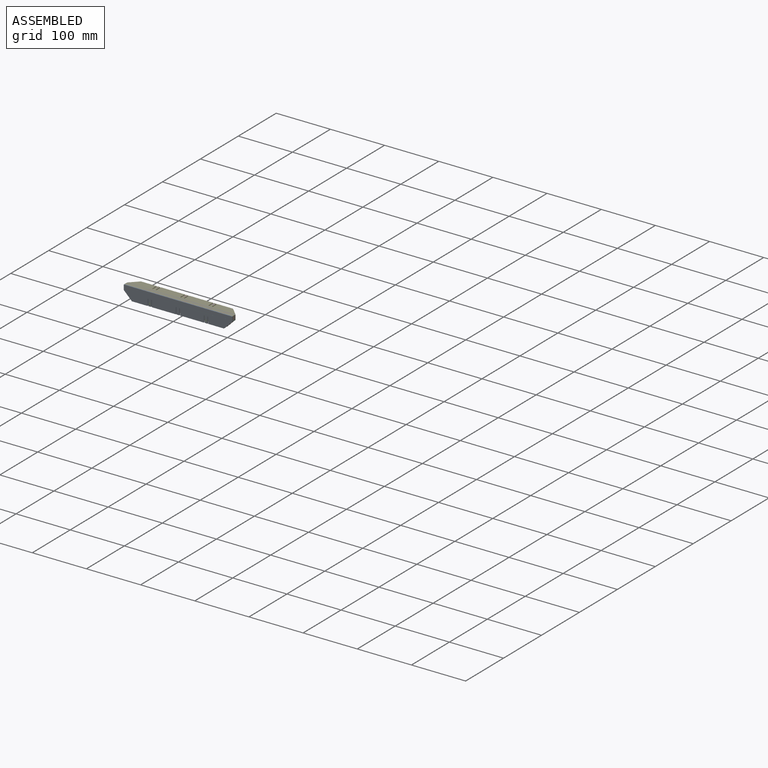
[diagram: assembled view]
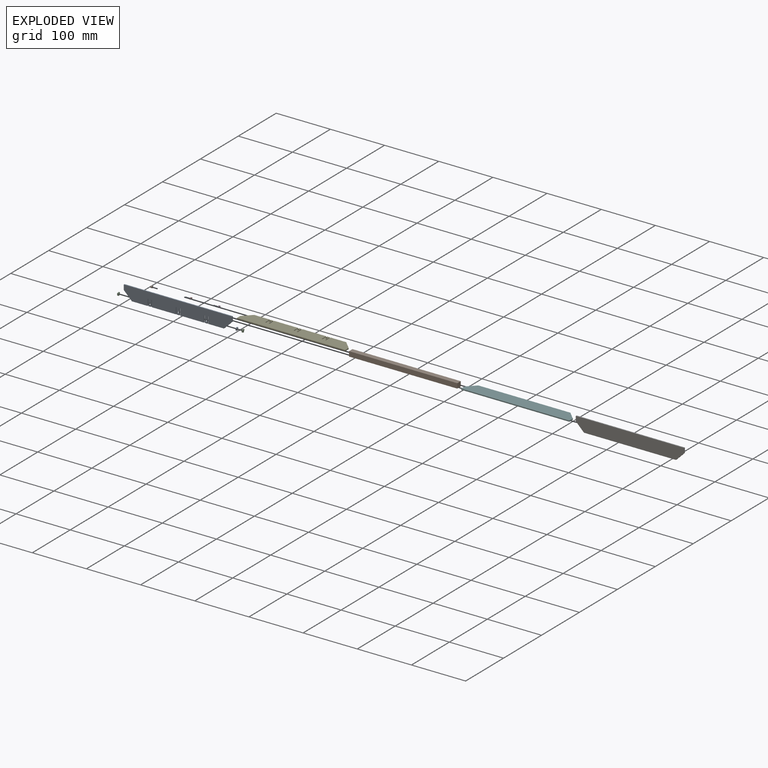
[diagram: exploded view]
GUIDED TOUR — MATED ASSEMBLY (Onshape document 86c91db47790280dee070196, AutoMate assembly 86c91db47790280dee070196_04dc0e2669c0e9b4a30aa99c_4aef8f6a618807159577870e_default)

This assembly has 11 components, labeled P0..P10 below (a component is one placed occurrence of a part; the same part can appear more than once), held together by 10 mates. A mate is a constraint between two components; its type names the relative motion it leaves free:
  FASTENED — locks the two components together rigidly (no relative motion).
Axis/direction vectors are unit vectors and 'through' points are millimeter coordinates, both in the assembly's world frame.

MATES
  1. FASTENED "Fastened 8": P3 <-> P4, direction (-1.000, 0.000, 0.000) through (48.04, 39.57, 34.28) mm
  2. FASTENED "Fastened 4": P4 <-> P8, direction (-1.000, 0.000, 0.000) through (-3.96, 18.07, 34.28) mm
  3. FASTENED "Fastened 6": P10 <-> P8, direction (-1.000, 0.000, 0.000) through (-55.96, 18.07, 16.78) mm
  4. FASTENED "Fastened 1": P8 <-> P9, direction (-1.000, 0.000, 0.000) through (-3.96, 18.07, 34.28) mm
  5. FASTENED "Fastened 5": P5 <-> P9, direction (-1.000, 0.000, 0.000) through (-3.96, 18.07, 25.28) mm
  6. FASTENED "Fastened 7": P0 <-> P8, direction (-1.000, 0.000, 0.000) through (-3.96, 18.07, 16.78) mm
  7. FASTENED "Fastened 9": P7 <-> P4, direction (-1.000, 0.000, 0.000) through (-3.96, 39.57, 34.28) mm
  8. FASTENED "Fastened 10": P1 <-> P4, direction (-1.000, 0.000, 0.000) through (-55.96, 39.57, 34.28) mm
  9. FASTENED "Fastened 3": P2 <-> P8, direction (-1.000, 0.000, 0.000) through (48.04, 18.07, 16.78) mm
  10. FASTENED "Fastened 2": P6 <-> P9, direction (-1.000, 0.000, 0.000) through (-3.96, 27.07, 34.28) mm

ASSEMBLY ORDER
  1. P7 — the base component [order verified]
  2. P3 [order verified]
  3. P1 [order verified]
  4. P9 [order verified]
  5. P4 [order verified]
  6. P10 [order verified]
  7. P0 [order verified]
  8. P2 [order verified]
  9. P8 [order verified]
  10. P6 [order verified]
  11. P5 [order verified]
(P4, P8 verified with a relaxed clearance tolerance: the source model stores slight part interference there.)
Order-tag legend:
  [order verified] — this step's position reverses a verified removal order: the component was checked to insert without passing through the ones already placed.

Of the 11 components, 11 carry the full construction recipe — the FeatureScript program that regenerates the part's solid from scratch; the rest are supplied as boundary geometry only.
Each toured component is shown spotlighted twice — in the assembled view, then in the exploded view, where a leader line traces a displaced component back to its assembled socket (saturated green if recipe-attached, orange if geometry-only; every other component desaturated gray) — followed by its recipe or geometry summary and the mates that hold it.
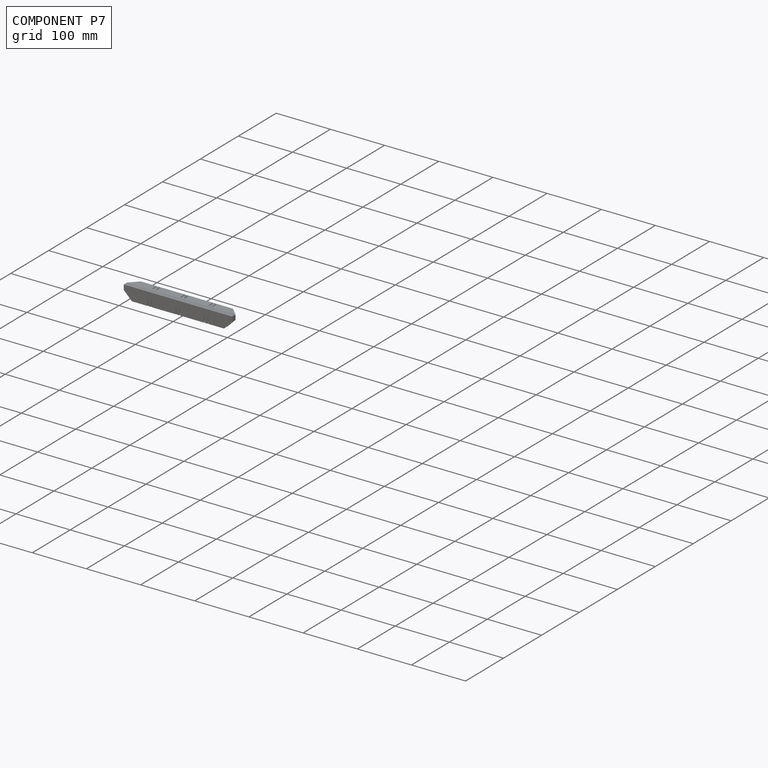
[diagram: component P7 — assembled]
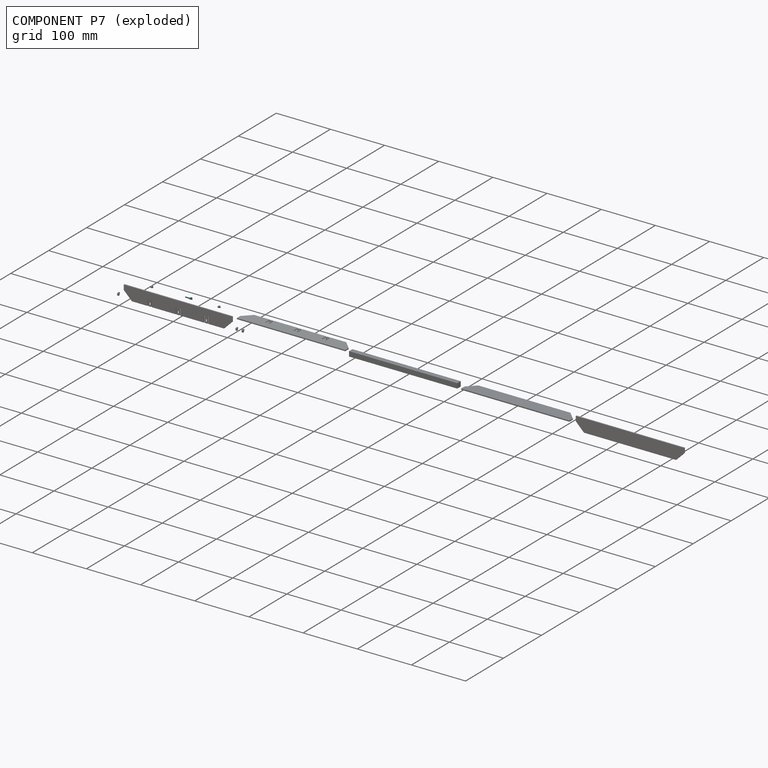
[diagram: component P7 — exploded]
COMPONENT P7 — same part as P0 (CADFS 00608664); its construction recipe is shown at P0.
Held by: FASTENED mate "Fastened 9" to P4.
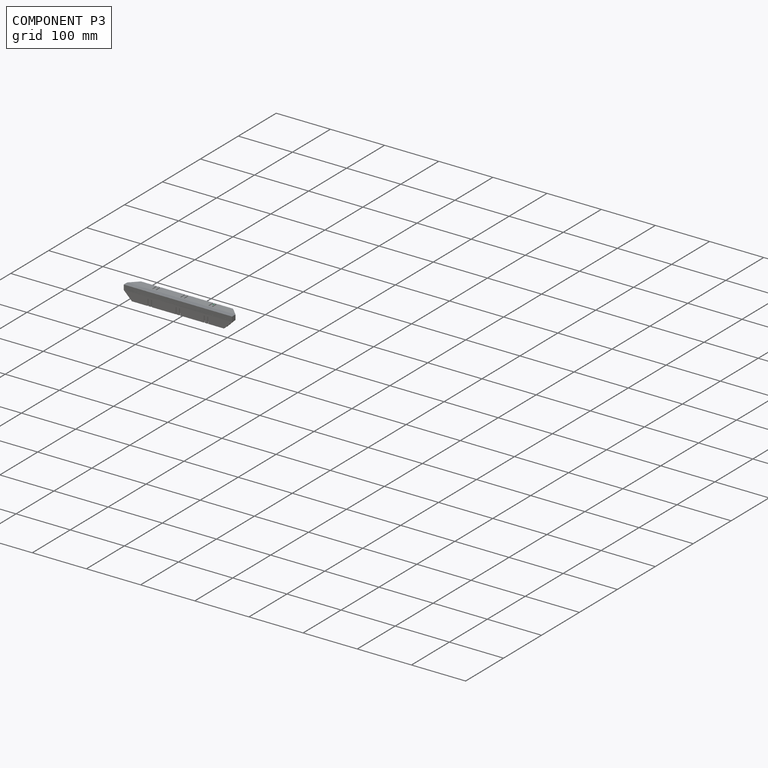
[diagram: component P3 — assembled]
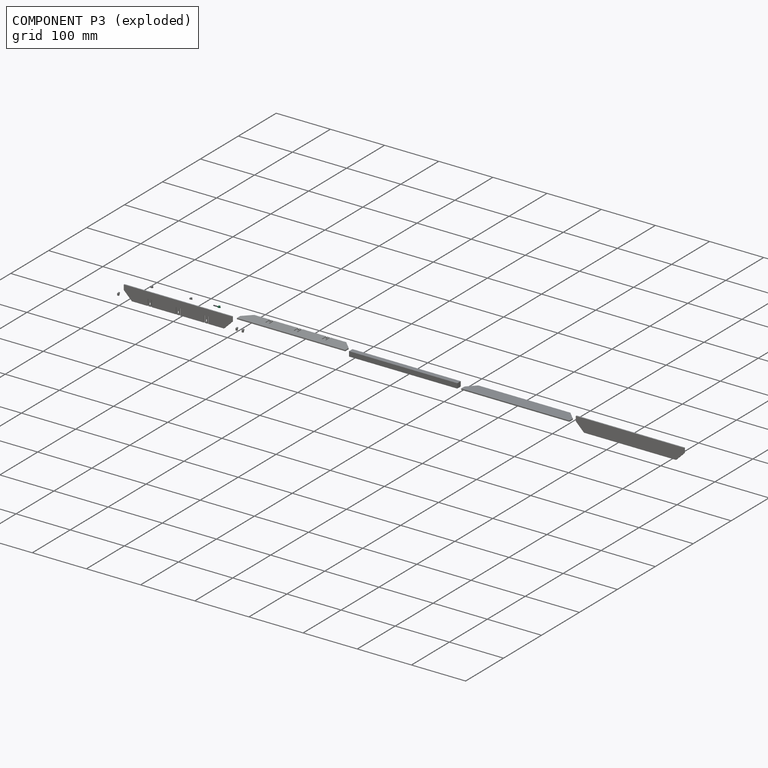
[diagram: component P3 — exploded]
COMPONENT P3 — same part as P0 (CADFS 00608664); its construction recipe is shown at P0.
Held by: FASTENED mate "Fastened 8" to P4.
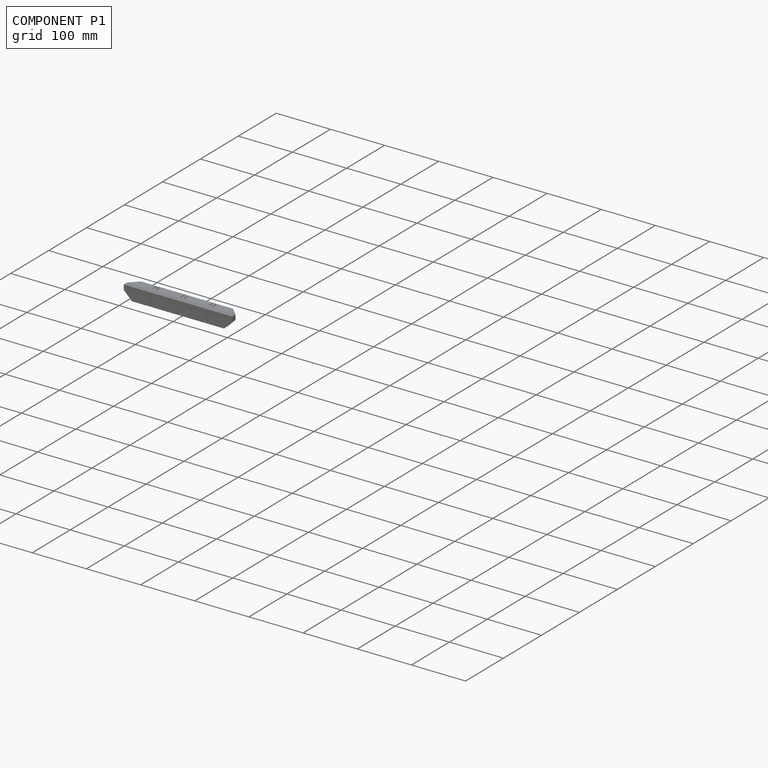
[diagram: component P1 — assembled]
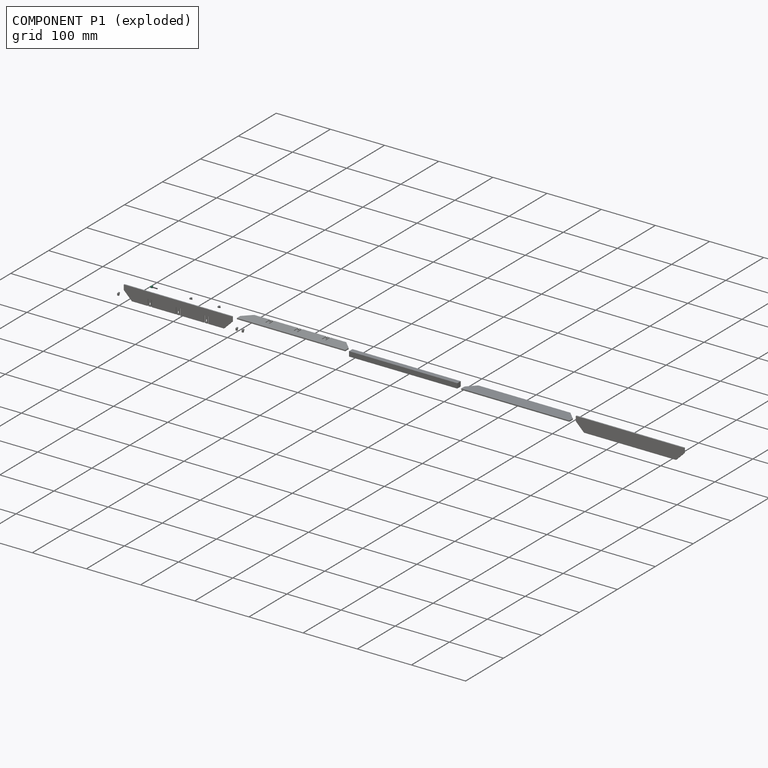
[diagram: component P1 — exploded]
COMPONENT P1 — same part as P0 (CADFS 00608664); its construction recipe is shown at P0.
Held by: FASTENED mate "Fastened 10" to P4.
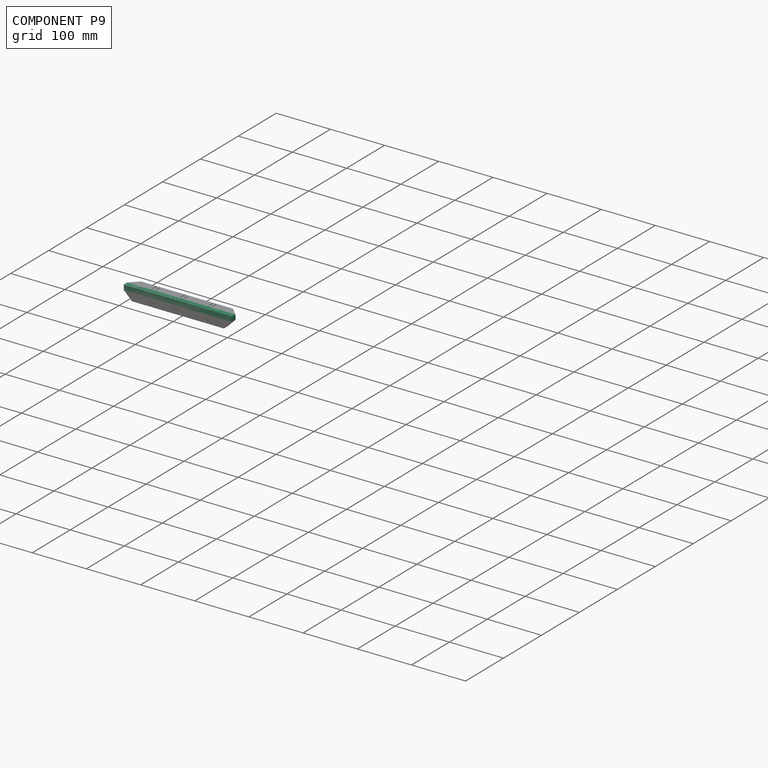
[diagram: component P9 — assembled]
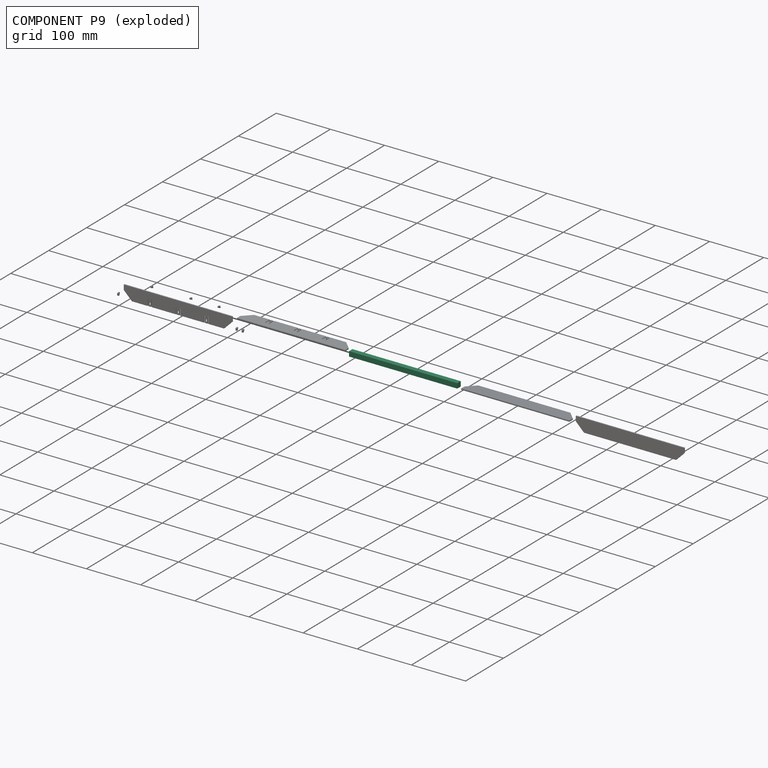
[diagram: component P9 — exploded]
COMPONENT P9 — recipe-attached (CADFS 00608663, mesh-verified: the recipe's output STEP matches this component's geometry to below the mesh-comparison resolution (tessellation chordal tolerance ~0.301 mm)).
Held by: FASTENED mate "Fastened 1" to P8; FASTENED mate "Fastened 5" to P5; FASTENED mate "Fastened 2" to P6.
Construction recipe (FeatureScript — the CAD program that rebuilds this solid; sketch coordinates are in the units given by the * unit suffixes, e.g. mm):

FeatureScript 1511;
import(path : "onshape/std/geometry.fs", version : "1511.0");
import(path : "onshape/std/common.fs", version : "1511.0");
const mm = millimeter;
const VERTEX = EntityType.VERTEX;
const EDGE = EntityType.EDGE;
const FACE = EntityType.FACE;
const BODY = EntityType.BODY;
function v(x, y){return vector(x, y);}
function OD(order){return orderDisambiguation(order);}
function OSD(set){return originalSetDisambiguation(set);}
function TD(topology){return topologyDisambiguation(topology);}
function TDD(query){return trueDependencyDisambiguation(query);}
function sQuery(a, b, c) {return sketchEntityQuery(a, b, c);}

annotation { "Feature Type Name" : "Feature", "Feature Type Description" : "" }
export const myFeature = defineFeature(function(context is Context, id is Id, definition is map)
    precondition{}
    {
        {
            var Q0;
            Q0=qCreatedBy(makeId("Front.planeOp"),FACE);
            var sketch = newSketch(context, id + "F0", { "sketchPlane" : qUnion([Q0])});
            skLineSegment(sketch, "E0.bottom", {"start": v(100, -4.5) * mm, "end": v(-100, -4.5) * mm});
            skLineSegment(sketch, "E0.top", {"start": v(100, 4.5) * mm, "end": v(-100, 4.5) * mm});
            skLineSegment(sketch, "E0.left", {"start": v(100, -4.5) * mm, "end": v(100, 4.5) * mm});
            skLineSegment(sketch, "E0.right", {"start": v(-100, -4.5) * mm, "end": v(-100, 4.5) * mm});
            skPoint(sketch, "E0.middle", {"position": v(0, 0) * mm});
            skSolve(sketch);
        }
        {
            var Q0;
            Q0=makeQuery(id+"F0.imprint","IMPRINT",FACE,{"disambiguationData":[TD([[makeQuery(id+"F0.imprint","IMPRINT",EDGE,{"derivedFrom":sQuery(id+"F0.wireOp",EDGE,"E0.bottom")}),-1.0]])]});
            extrude(context, id + "F1", {"entities" : qUnion([Q0]), "depth" : 9 * mm, "offsetDistance" : 25 * mm});
        }
    });
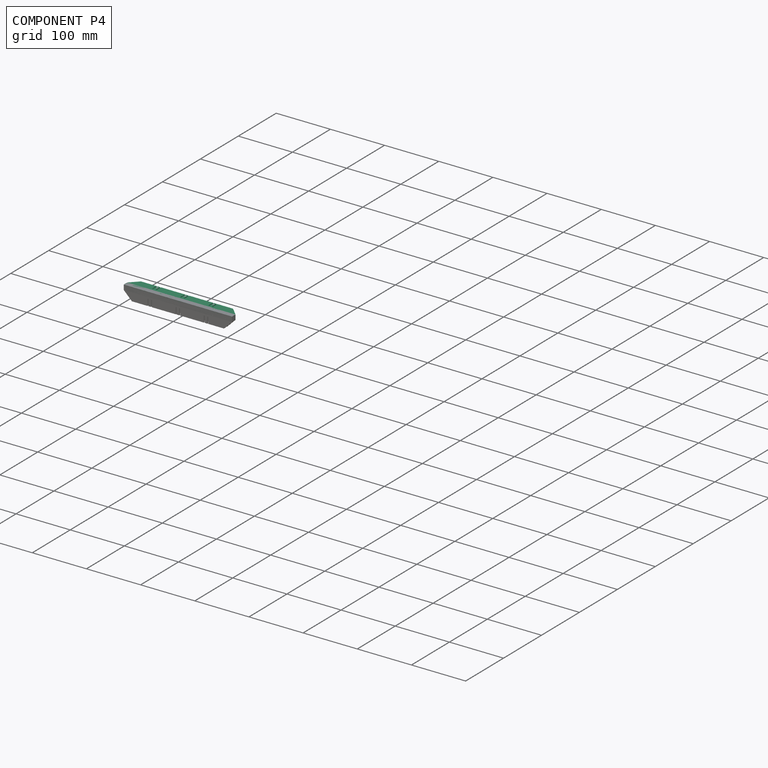
[diagram: component P4 — assembled]
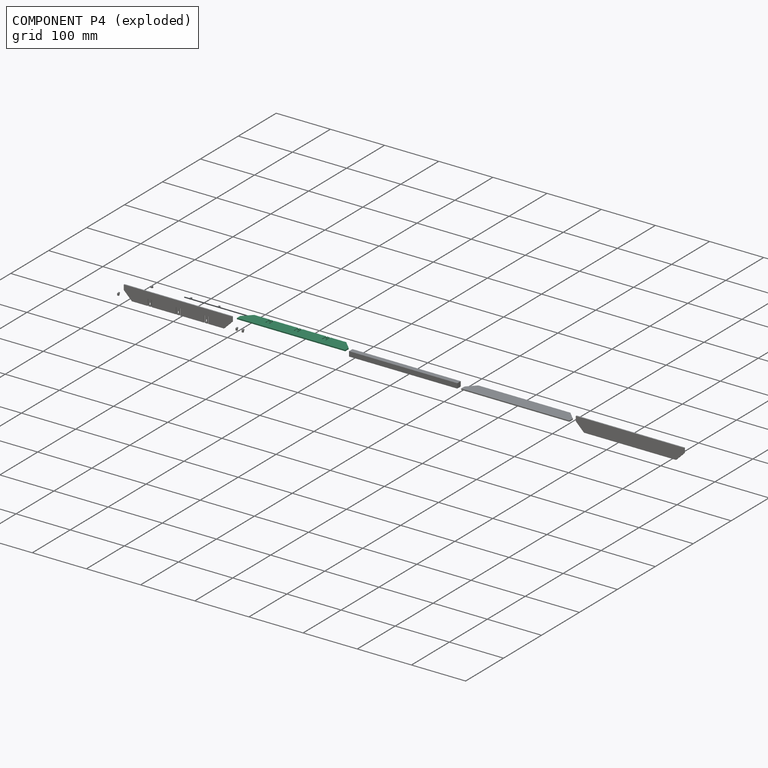
[diagram: component P4 — exploded]
COMPONENT P4 — recipe-attached (CADFS 00608661, mesh-verified: the recipe's output STEP matches this component's geometry to below the mesh-comparison resolution (tessellation chordal tolerance ~0.302 mm)).
Held by: FASTENED mate "Fastened 8" to P3; FASTENED mate "Fastened 4" to P8; FASTENED mate "Fastened 9" to P7; FASTENED mate "Fastened 10" to P1.
Construction recipe (FeatureScript — the CAD program that rebuilds this solid; sketch coordinates are in the units given by the * unit suffixes, e.g. mm):

FeatureScript 1511;
import(path : "onshape/std/geometry.fs", version : "1511.0");
import(path : "onshape/std/common.fs", version : "1511.0");
const mm = millimeter;
const VERTEX = EntityType.VERTEX;
const EDGE = EntityType.EDGE;
const FACE = EntityType.FACE;
const BODY = EntityType.BODY;
function v(x, y){return vector(x, y);}
function OD(order){return orderDisambiguation(order);}
function OSD(set){return originalSetDisambiguation(set);}
function TD(topology){return topologyDisambiguation(topology);}
function TDD(query){return trueDependencyDisambiguation(query);}
function sQuery(a, b, c) {return sketchEntityQuery(a, b, c);}

annotation { "Feature Type Name" : "Feature", "Feature Type Description" : "" }
export const myFeature = defineFeature(function(context is Context, id is Id, definition is map)
    precondition{}
    {
        {
            var Q0;
            Q0=qCreatedBy(makeId("Front.planeOp"),FACE);
            var sketch = newSketch(context, id + "F0", { "sketchPlane" : qUnion([Q0])});
            skLineSegment(sketch, "E0.bottom", {"start": v(85, -7.5) * mm, "end": v(-85, -7.5) * mm});
            skLineSegment(sketch, "E0.top", {"start": v(85, 7.5) * mm, "end": v(-85, 7.5) * mm});
            skLineSegment(sketch, "E0.left", {"start": v(85, -7.5) * mm, "end": v(85, 7.5) * mm});
            skLineSegment(sketch, "E0.right", {"start": v(-85, -7.5) * mm, "end": v(-85, 7.5) * mm});
            skPoint(sketch, "E0.middle", {"position": v(0, 0) * mm});
            skLineSegment(sketch, "E1.bottom", {"start": v(-85, -7.5) * mm, "end": v(-100, -7.5) * mm});
            skLineSegment(sketch, "E1.top", {"start": v(-85, 7.5) * mm, "end": v(-100, 7.5) * mm});
            skLineSegment(sketch, "E1.right", {"start": v(-100, -7.5) * mm, "end": v(-100, 7.5) * mm});
            skPoint(sketch, "E1.middle", {"position": v(-92.5, 0) * mm});
            skLineSegment(sketch, "E2", {"start": v(-100, 7.5) * mm, "end": v(-85, -7.5) * mm});
            skLineSegment(sketch, "E3.bottom", {"start": v(100, -7.5) * mm, "end": v(85, -7.5) * mm});
            skLineSegment(sketch, "E3.top", {"start": v(100, 7.5) * mm, "end": v(85, 7.5) * mm});
            skLineSegment(sketch, "E3.left", {"start": v(100, -7.5) * mm, "end": v(100, 7.5) * mm});
            skPoint(sketch, "E3.middle", {"position": v(92.5, 0) * mm});
            skLineSegment(sketch, "E4", {"start": v(85, -7.5) * mm, "end": v(100, 7.5) * mm});
            skLineSegment(sketch, "E5.bottom", {"start": v(-54.5, -7.5) * mm, "end": v(-56, -7.5) * mm});
            skLineSegment(sketch, "E5.top", {"start": v(-54.5, 4.5) * mm, "end": v(-56, 4.5) * mm});
            skLineSegment(sketch, "E5.left", {"start": v(-54.5, -7.5) * mm, "end": v(-54.5, 4.5) * mm});
            skLineSegment(sketch, "E5.right", {"start": v(-56, -7.5) * mm, "end": v(-56, 4.5) * mm});
            skPoint(sketch, "E5.middle", {"position": v(-55.25, -1.5) * mm});
            skLineSegment(sketch, "E6.bottom", {"start": v(-48, -7.5) * mm, "end": v(-49.5, -7.5) * mm});
            skLineSegment(sketch, "E6.top", {"start": v(-48, 4.5) * mm, "end": v(-49.5, 4.5) * mm});
            skLineSegment(sketch, "E6.left", {"start": v(-48, -7.5) * mm, "end": v(-48, 4.5) * mm});
            skLineSegment(sketch, "E6.right", {"start": v(-49.5, -7.5) * mm, "end": v(-49.5, 4.5) * mm});
            skPoint(sketch, "E6.middle", {"position": v(-48.75, -1.5) * mm});
            skLineSegment(sketch, "E7.bottom", {"start": v(-2.5, -7.5) * mm, "end": v(-4, -7.5) * mm});
            skLineSegment(sketch, "E7.top", {"start": v(-2.5, 4.5) * mm, "end": v(-4, 4.5) * mm});
            skLineSegment(sketch, "E7.left", {"start": v(-2.5, -7.5) * mm, "end": v(-2.5, 4.5) * mm});
            skLineSegment(sketch, "E7.right", {"start": v(-4, -7.5) * mm, "end": v(-4, 4.5) * mm});
            skPoint(sketch, "E7.middle", {"position": v(-3.25, -1.5) * mm});
            skLineSegment(sketch, "E8.bottom", {"start": v(4, -7.5) * mm, "end": v(2.5, -7.5) * mm});
            skLineSegment(sketch, "E8.top", {"start": v(4, 4.5) * mm, "end": v(2.5, 4.5) * mm});
            skLineSegment(sketch, "E8.left", {"start": v(4, -7.5) * mm, "end": v(4, 4.5) * mm});
            skLineSegment(sketch, "E8.right", {"start": v(2.5, -7.5) * mm, "end": v(2.5, 4.5) * mm});
            skPoint(sketch, "E8.middle", {"position": v(3.25, -1.5) * mm});
            skLineSegment(sketch, "E9.bottom", {"start": v(49.5, -7.5) * mm, "end": v(48, -7.5) * mm});
            skLineSegment(sketch, "E9.top", {"start": v(49.5, 4.5) * mm, "end": v(48, 4.5) * mm});
            skLineSegment(sketch, "E9.left", {"start": v(49.5, -7.5) * mm, "end": v(49.5, 4.5) * mm});
            skLineSegment(sketch, "E9.right", {"start": v(48, -7.5) * mm, "end": v(48, 4.5) * mm});
            skPoint(sketch, "E9.middle", {"position": v(48.75, -1.5) * mm});
            skLineSegment(sketch, "E10.bottom", {"start": v(56, -7.5) * mm, "end": v(54.5, -7.5) * mm});
            skLineSegment(sketch, "E10.top", {"start": v(56, 4.5) * mm, "end": v(54.5, 4.5) * mm});
            skLineSegment(sketch, "E10.left", {"start": v(56, -7.5) * mm, "end": v(56, 4.5) * mm});
            skLineSegment(sketch, "E10.right", {"start": v(54.5, -7.5) * mm, "end": v(54.5, 4.5) * mm});
            skPoint(sketch, "E10.middle", {"position": v(55.25, -1.5) * mm});
            skLineSegment(sketch, "E11.bottom", {"start": v(-50.75, -5) * mm, "end": v(-53.25, -5) * mm});
            skLineSegment(sketch, "E11.top", {"start": v(-50.75, -1) * mm, "end": v(-53.25, -1) * mm});
            skLineSegment(sketch, "E11.left", {"start": v(-50.75, -5) * mm, "end": v(-50.75, -1) * mm});
            skLineSegment(sketch, "E11.right", {"start": v(-53.25, -5) * mm, "end": v(-53.25, -1) * mm});
            skPoint(sketch, "E11.middle", {"position": v(-52, -3) * mm});
            skLineSegment(sketch, "E12.bottom", {"start": v(53.25, -5) * mm, "end": v(50.75, -5) * mm});
            skLineSegment(sketch, "E12.top", {"start": v(53.25, -1) * mm, "end": v(50.75, -1) * mm});
            skLineSegment(sketch, "E12.left", {"start": v(53.25, -5) * mm, "end": v(53.25, -1) * mm});
            skLineSegment(sketch, "E12.right", {"start": v(50.75, -5) * mm, "end": v(50.75, -1) * mm});
            skPoint(sketch, "E12.middle", {"position": v(52, -3) * mm});
            skLineSegment(sketch, "E13.bottom", {"start": v(1.25, -5) * mm, "end": v(-1.25, -5) * mm});
            skLineSegment(sketch, "E13.top", {"start": v(1.25, -1) * mm, "end": v(-1.25, -1) * mm});
            skLineSegment(sketch, "E13.left", {"start": v(1.25, -5) * mm, "end": v(1.25, -1) * mm});
            skLineSegment(sketch, "E13.right", {"start": v(-1.25, -5) * mm, "end": v(-1.25, -1) * mm});
            skPoint(sketch, "E13.middle", {"position": v(0, -3) * mm});
            skLineSegment(sketch, "E14.bottom", {"start": v(100, 7.5) * mm, "end": v(-100, 7.5) * mm});
            skLineSegment(sketch, "E14.top", {"start": v(100, 16.5) * mm, "end": v(-100, 16.5) * mm});
            skLineSegment(sketch, "E14.left", {"start": v(100, 7.5) * mm, "end": v(100, 16.5) * mm});
            skLineSegment(sketch, "E14.right", {"start": v(-100, 7.5) * mm, "end": v(-100, 16.5) * mm});
            skPoint(sketch, "E14.middle", {"position": v(0, 12) * mm});
            skSolve(sketch);
        }
        {
            var Q0;
            Q0=makeQuery(id+"F0.imprint","IMPRINT",FACE,{"disambiguationData":[TD([[makeQuery(id+"F0.imprint","IMPRINT",EDGE,{"derivedFrom":sQuery(id+"F0.wireOp",EDGE,"E0.bottom")}),-1.0]])]});
            var Q1;
            Q1=makeQuery(id+"F0.imprint","IMPRINT",FACE,{"disambiguationData":[TD([[makeQuery(id+"F0.imprint","IMPRINT",EDGE,{"derivedFrom":sQuery(id+"F0.wireOp",EDGE,"E1.top")}),1.0]])]});
            var Q2;
            Q2=makeQuery(id+"F0.imprint","IMPRINT",FACE,{"disambiguationData":[TD([[makeQuery(id+"F0.imprint","IMPRINT",EDGE,{"derivedFrom":sQuery(id+"F0.wireOp",EDGE,"E3.top")}),1.0]])]});
            var Q3;
            Q3=makeQuery(id+"F0.imprint","IMPRINT",FACE,{"disambiguationData":[TD([[makeQuery(id+"F0.imprint","IMPRINT",EDGE,{"derivedFrom":sQuery(id+"F0.wireOp",EDGE,"OD9o5IjV-5K3p-bvsU-E8e2-8qKfq0g9wVGw.bottom")}),-1.0]])]});
            var Q4;
            {var subQ0=sQuery(id+"F0.wireOp",EDGE,"E0.right");Q4=makeQuery(id+"F0.imprint","IMPRINT",FACE,{"disambiguationData":[TD([[makeQuery(id+"F0.imprint","IMPRINT",EDGE,{"derivedFrom":subQ0}),1.0]])]});}
            var Q5;
            Q5=makeQuery(id+"F0.imprint","IMPRINT",FACE,{"disambiguationData":[TD([[makeQuery(id+"F0.imprint","IMPRINT",EDGE,{"derivedFrom":sQuery(id+"F0.wireOp",EDGE,"E14.top")}),1.0]])]});
            var Q6;
            {var subQ0=sQuery(id+"F0.wireOp",EDGE,"E0.left");Q6=makeQuery(id+"F0.imprint","IMPRINT",FACE,{"disambiguationData":[TD([[makeQuery(id+"F0.imprint","IMPRINT",EDGE,{"derivedFrom":subQ0}),-1.0]])]});}
            extrude(context, id + "F1", {"entities" : qUnion([Q0, Q1, Q2, Q3, Q4, Q5, Q6]), "depth" : 2 * mm, "offsetDistance" : 25 * mm});
        }
    });
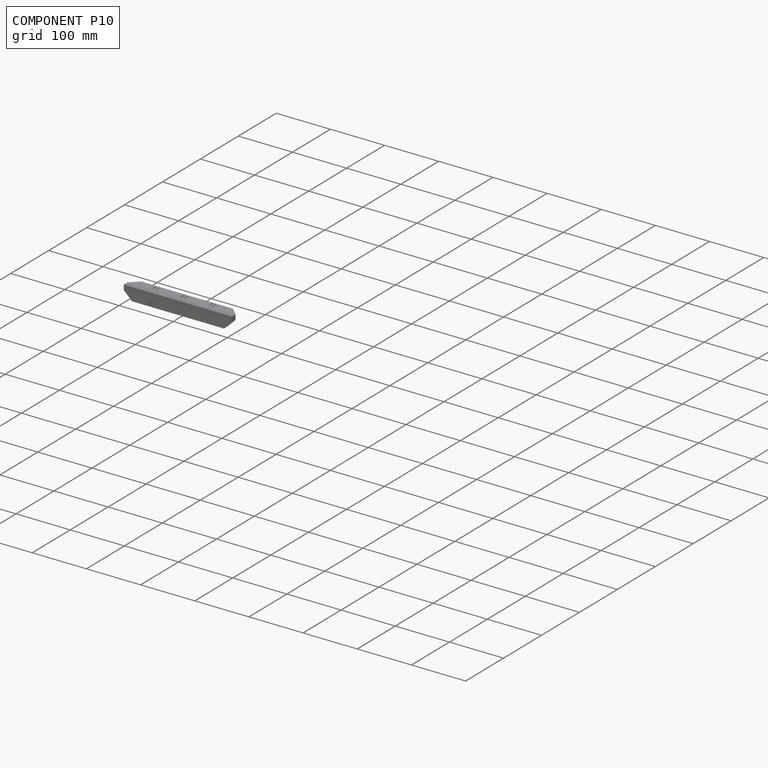
[diagram: component P10 — assembled]
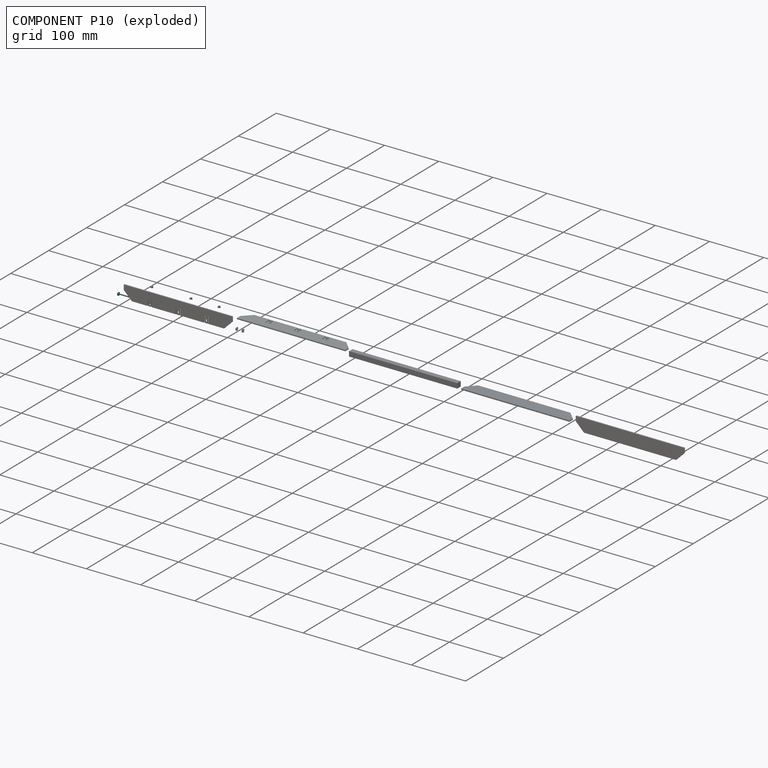
[diagram: component P10 — exploded]
COMPONENT P10 — same part as P0 (CADFS 00608664); its construction recipe is shown at P0.
Held by: FASTENED mate "Fastened 6" to P8.
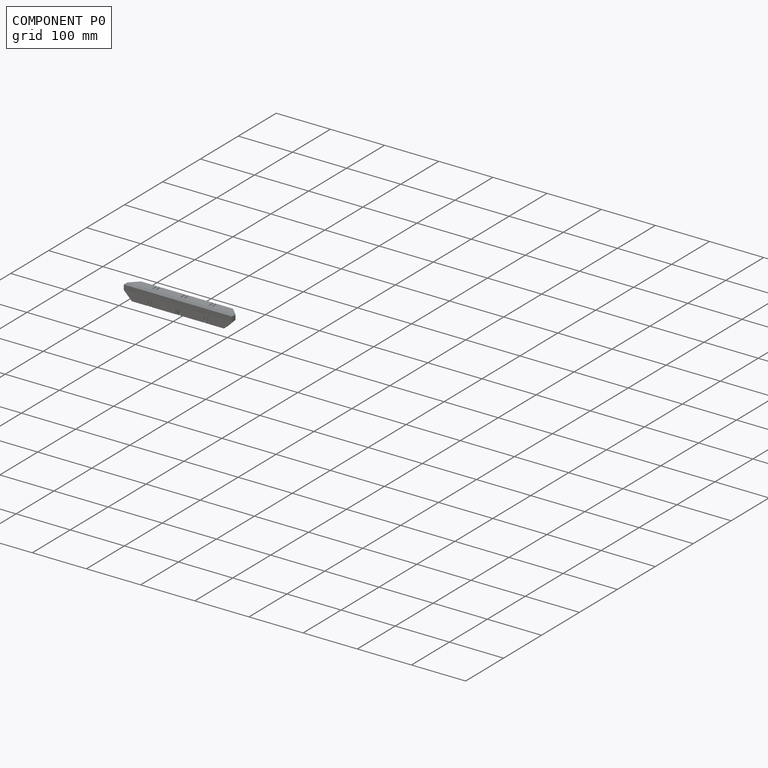
[diagram: component P0 — assembled]
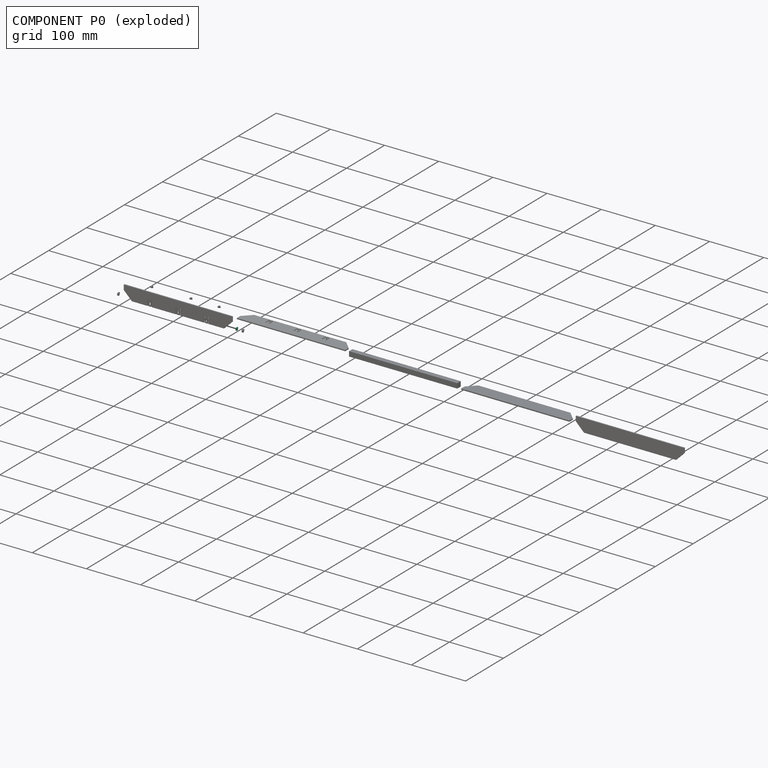
[diagram: component P0 — exploded]
COMPONENT P0 — recipe-attached (CADFS 00608664, mesh-verified: the recipe's output STEP matches this component's geometry to below the mesh-comparison resolution (tessellation chordal tolerance ~0.0103 mm)).
Held by: FASTENED mate "Fastened 7" to P8.
Construction recipe (FeatureScript — the CAD program that rebuilds this solid; sketch coordinates are in the units given by the * unit suffixes, e.g. mm):

FeatureScript 1511;
import(path : "onshape/std/geometry.fs", version : "1511.0");
import(path : "onshape/std/common.fs", version : "1511.0");
const mm = millimeter;
const VERTEX = EntityType.VERTEX;
const EDGE = EntityType.EDGE;
const FACE = EntityType.FACE;
const BODY = EntityType.BODY;
function v(x, y){return vector(x, y);}
function OD(order){return orderDisambiguation(order);}
function OSD(set){return originalSetDisambiguation(set);}
function TD(topology){return topologyDisambiguation(topology);}
function TDD(query){return trueDependencyDisambiguation(query);}
function sQuery(a, b, c) {return sketchEntityQuery(a, b, c);}

annotation { "Feature Type Name" : "Feature", "Feature Type Description" : "" }
export const myFeature = defineFeature(function(context is Context, id is Id, definition is map)
    precondition{}
    {
        {
            var Q0;
            Q0=qCreatedBy(makeId("Right.planeOp"),FACE);
            var sketch = newSketch(context, id + "F0", { "sketchPlane" : qUnion([Q0])});
            skLineSegment(sketch, "E0.bottom", {"start": v(1, -2) * mm, "end": v(-1, -2) * mm});
            skLineSegment(sketch, "E0.top", {"start": v(1, 2) * mm, "end": v(-1, 2) * mm});
            skLineSegment(sketch, "E0.left", {"start": v(1, -2) * mm, "end": v(1, 2) * mm});
            skLineSegment(sketch, "E0.right", {"start": v(-1, -2) * mm, "end": v(-1, 2) * mm});
            skPoint(sketch, "E0.middle", {"position": v(0, 0) * mm});
            skLineSegment(sketch, "E1.bottom", {"start": v(3, -2.5) * mm, "end": v(1, -2.5) * mm});
            skLineSegment(sketch, "E1.top", {"start": v(3, 2.5) * mm, "end": v(1, 2.5) * mm});
            skLineSegment(sketch, "E1.left", {"start": v(3, -2.5) * mm, "end": v(3, 2.5) * mm});
            skLineSegment(sketch, "E1.right", {"start": v(1, -2.5) * mm, "end": v(1, 2.5) * mm});
            skPoint(sketch, "E1.middle", {"position": v(2, 0) * mm});
            skLineSegment(sketch, "E2", {"start": v(1, -2.5) * mm, "end": v(3, 2.5) * mm});
            skSolve(sketch);
        }
        {
            var Q0;
            {var subQ0=sQuery(id+"F0.wireOp",EDGE,"E0.bottom");Q0=makeQuery(id+"F0.imprint","IMPRINT",FACE,{"disambiguationData":[TD([[makeQuery(id+"F0.imprint","IMPRINT",EDGE,{"derivedFrom":subQ0}),-1.0]])]});}
            var Q1;
            {var subQ2=sQuery(id+"F0.wireOp",EDGE,"E1.top");Q1=makeQuery(id+"F0.imprint","IMPRINT",FACE,{"disambiguationData":[TD([[makeQuery(id+"F0.imprint","IMPRINT",EDGE,{"derivedFrom":subQ2}),1.0]])]});}
            extrude(context, id + "F1", {"entities" : qUnion([Q0, Q1]), "depth" : 2.5 * mm, "offsetDistance" : 25 * mm});
        }
    });
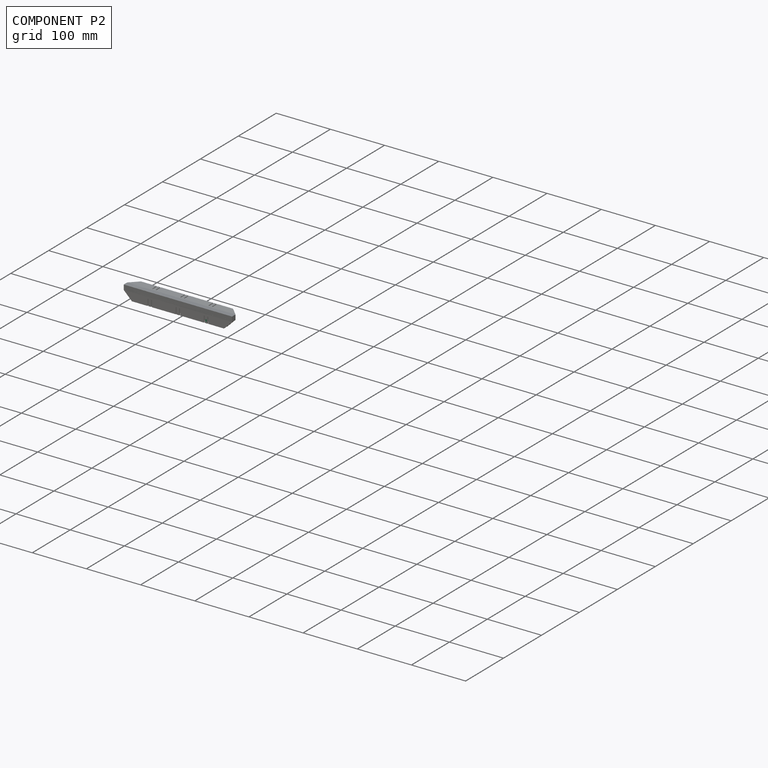
[diagram: component P2 — assembled]
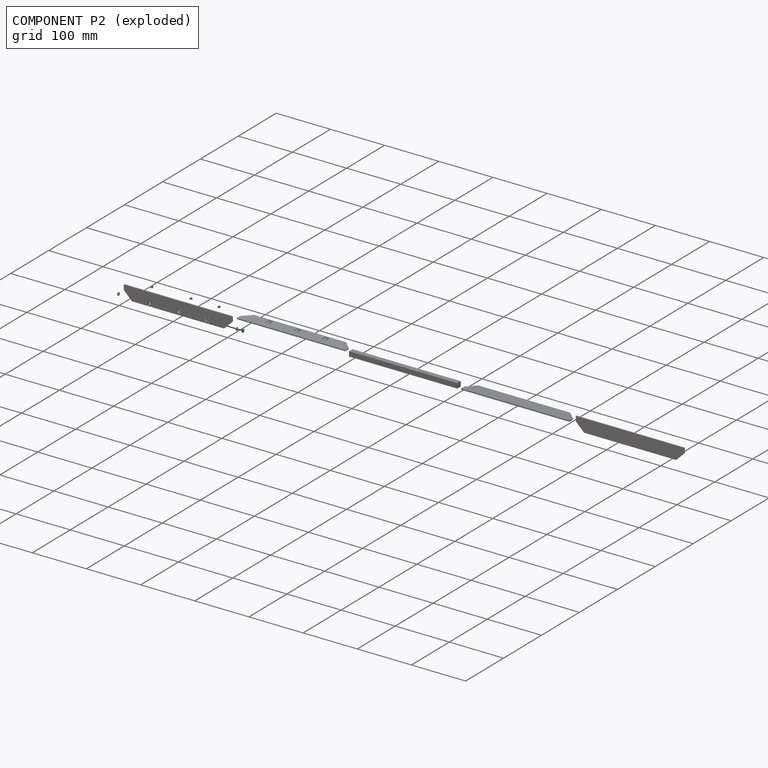
[diagram: component P2 — exploded]
COMPONENT P2 — same part as P0 (CADFS 00608664); its construction recipe is shown at P0.
Held by: FASTENED mate "Fastened 3" to P8.
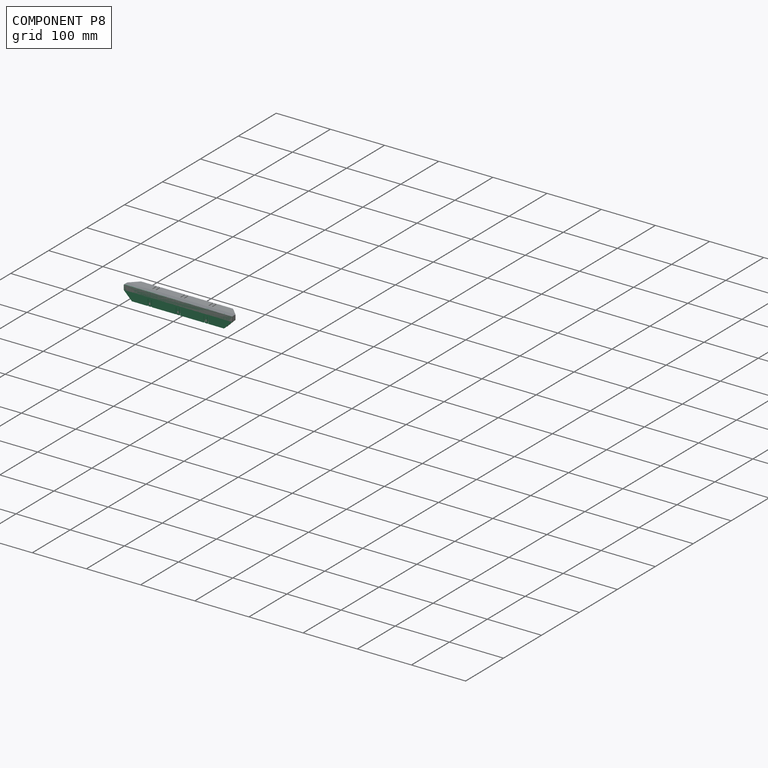
[diagram: component P8 — assembled]
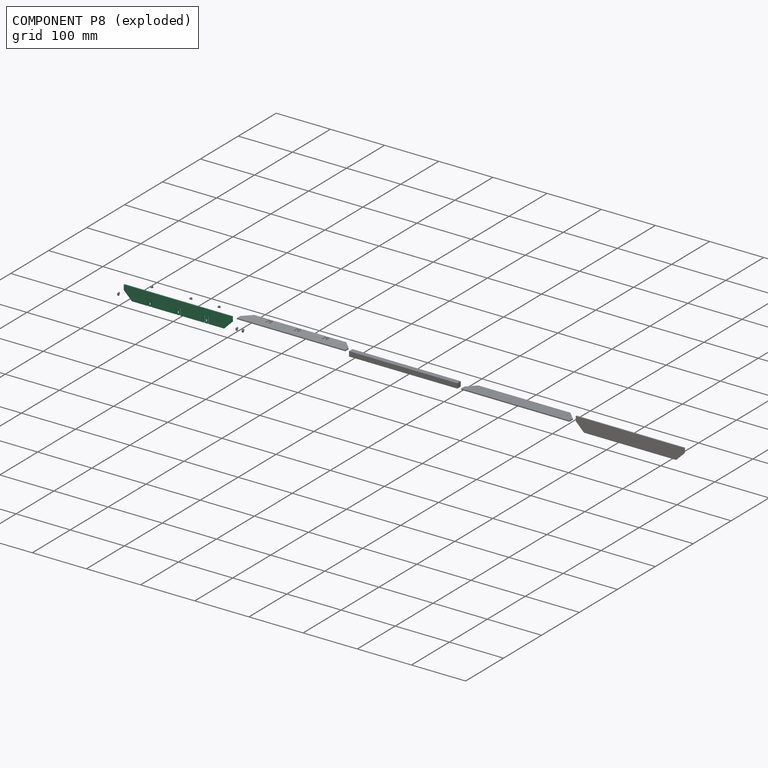
[diagram: component P8 — exploded]
COMPONENT P8 — same part as P4 (CADFS 00608661); its construction recipe is shown at P4.
Held by: FASTENED mate "Fastened 4" to P4; FASTENED mate "Fastened 6" to P10; FASTENED mate "Fastened 1" to P9; FASTENED mate "Fastened 7" to P0; FASTENED mate "Fastened 3" to P2.
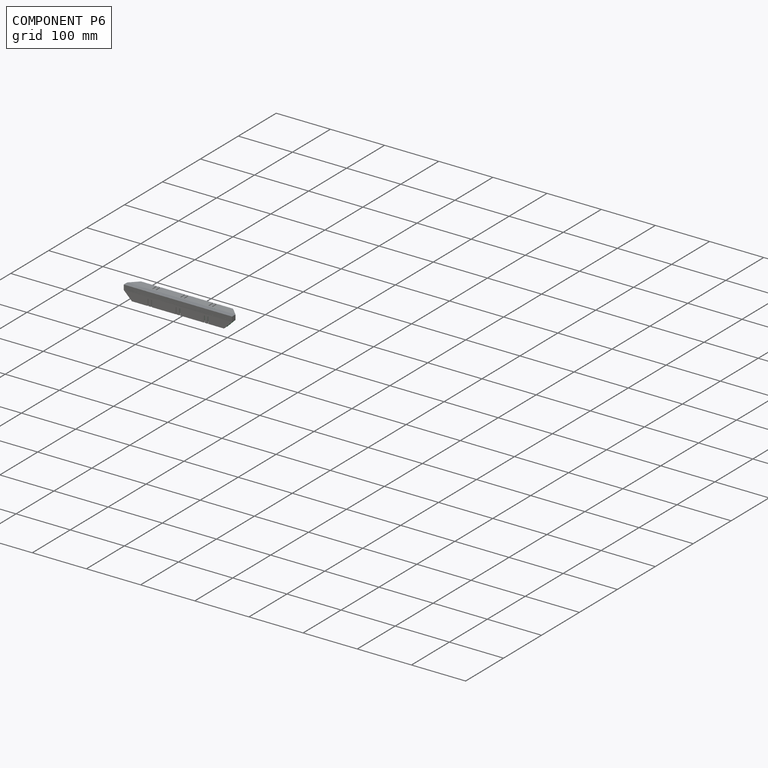
[diagram: component P6 — assembled]
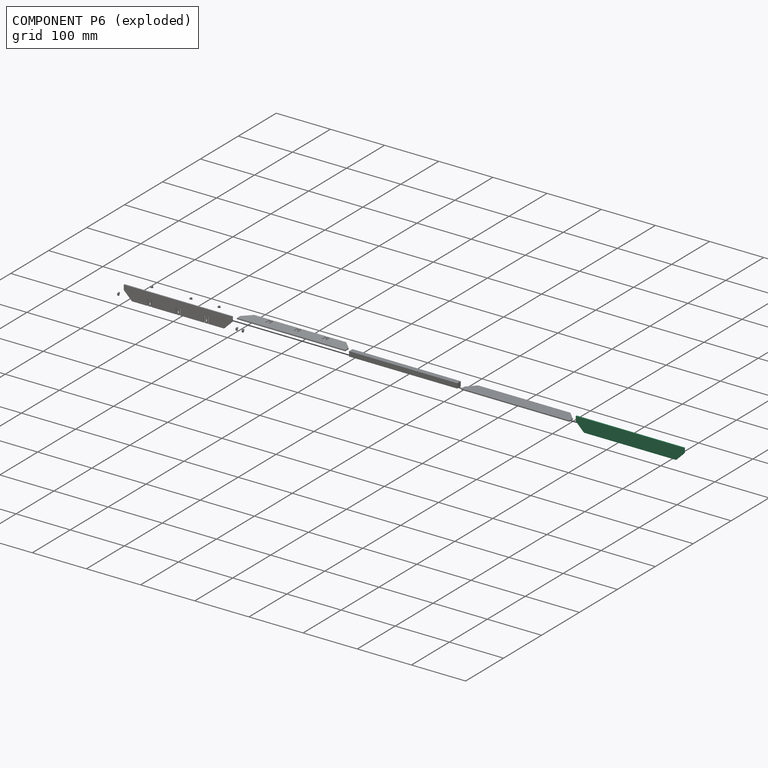
[diagram: component P6 — exploded]
COMPONENT P6 — same part as P5 (CADFS 00608662); its construction recipe is shown at P5.
Held by: FASTENED mate "Fastened 2" to P9.
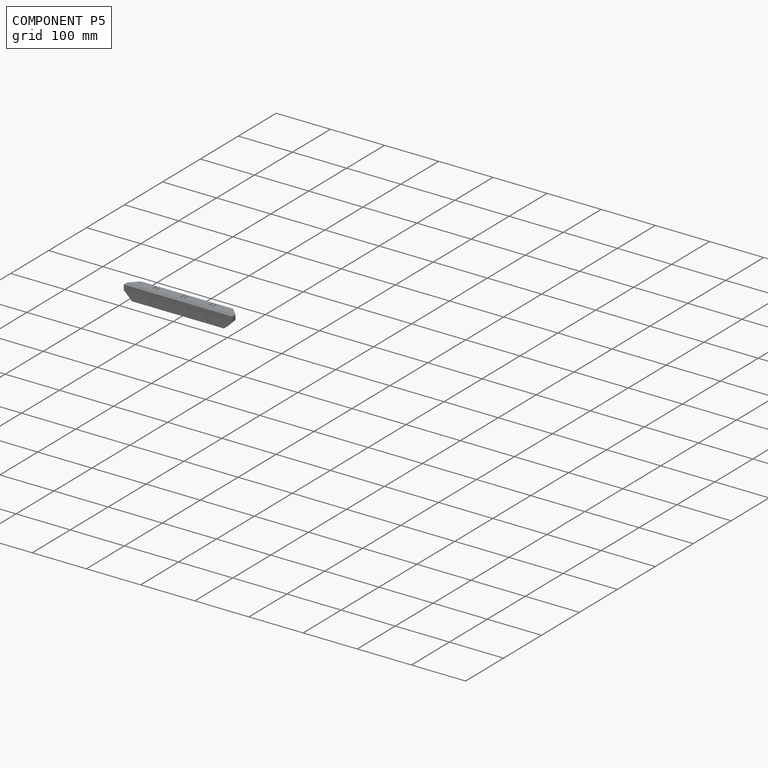
[diagram: component P5 — assembled]
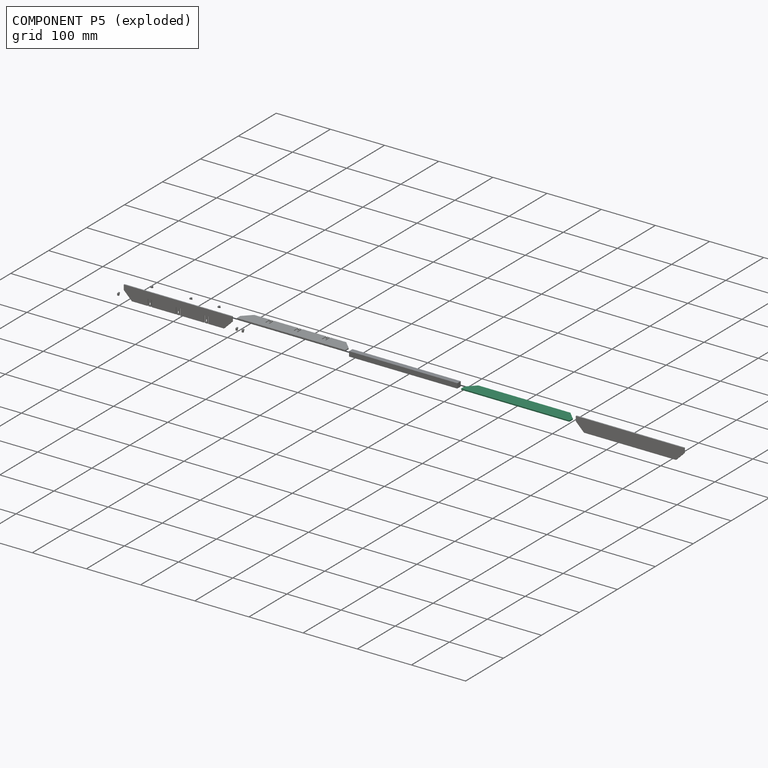
[diagram: component P5 — exploded]
COMPONENT P5 — recipe-attached (CADFS 00608662, mesh-verified: the recipe's output STEP matches this component's geometry to below the mesh-comparison resolution (tessellation chordal tolerance ~0.302 mm)).
Held by: FASTENED mate "Fastened 5" to P9.
Construction recipe (FeatureScript — the CAD program that rebuilds this solid; sketch coordinates are in the units given by the * unit suffixes, e.g. mm):

FeatureScript 1511;
import(path : "onshape/std/geometry.fs", version : "1511.0");
import(path : "onshape/std/common.fs", version : "1511.0");
const mm = millimeter;
const VERTEX = EntityType.VERTEX;
const EDGE = EntityType.EDGE;
const FACE = EntityType.FACE;
const BODY = EntityType.BODY;
function v(x, y){return vector(x, y);}
function OD(order){return orderDisambiguation(order);}
function OSD(set){return originalSetDisambiguation(set);}
function TD(topology){return topologyDisambiguation(topology);}
function TDD(query){return trueDependencyDisambiguation(query);}
function sQuery(a, b, c) {return sketchEntityQuery(a, b, c);}

annotation { "Feature Type Name" : "Feature", "Feature Type Description" : "" }
export const myFeature = defineFeature(function(context is Context, id is Id, definition is map)
    precondition{}
    {
        {
            var Q0;
            Q0=qCreatedBy(makeId("Front.planeOp"),FACE);
            var sketch = newSketch(context, id + "F0", { "sketchPlane" : qUnion([Q0])});
            skLineSegment(sketch, "E0.bottom", {"start": v(85, -7.5) * mm, "end": v(-85, -7.5) * mm});
            skLineSegment(sketch, "E0.top", {"start": v(85, 7.5) * mm, "end": v(-85, 7.5) * mm});
            skLineSegment(sketch, "E0.left", {"start": v(85, -7.5) * mm, "end": v(85, 7.5) * mm});
            skLineSegment(sketch, "E0.right", {"start": v(-85, -7.5) * mm, "end": v(-85, 7.5) * mm});
            skPoint(sketch, "E0.middle", {"position": v(0, 0) * mm});
            skLineSegment(sketch, "E1.bottom", {"start": v(-85, -7.5) * mm, "end": v(-100, -7.5) * mm});
            skLineSegment(sketch, "E1.top", {"start": v(-85, 7.5) * mm, "end": v(-100, 7.5) * mm});
            skLineSegment(sketch, "E1.right", {"start": v(-100, -7.5) * mm, "end": v(-100, 7.5) * mm});
            skPoint(sketch, "E1.middle", {"position": v(-92.5, 0) * mm});
            skLineSegment(sketch, "E2", {"start": v(-100, 7.5) * mm, "end": v(-85, -7.5) * mm});
            skLineSegment(sketch, "E3.bottom", {"start": v(100, -7.5) * mm, "end": v(85, -7.5) * mm});
            skLineSegment(sketch, "E3.top", {"start": v(100, 7.5) * mm, "end": v(85, 7.5) * mm});
            skLineSegment(sketch, "E3.left", {"start": v(100, -7.5) * mm, "end": v(100, 7.5) * mm});
            skPoint(sketch, "E3.middle", {"position": v(92.5, 0) * mm});
            skLineSegment(sketch, "E4", {"start": v(85, -7.5) * mm, "end": v(100, 7.5) * mm});
            skLineSegment(sketch, "E5.bottom", {"start": v(100, 7.5) * mm, "end": v(-100, 7.5) * mm});
            skLineSegment(sketch, "E5.top", {"start": v(100, 16.5) * mm, "end": v(-100, 16.5) * mm});
            skLineSegment(sketch, "E5.left", {"start": v(100, 7.5) * mm, "end": v(100, 16.5) * mm});
            skLineSegment(sketch, "E5.right", {"start": v(-100, 7.5) * mm, "end": v(-100, 16.5) * mm});
            skPoint(sketch, "E5.middle", {"position": v(0, 12) * mm});
            skSolve(sketch);
        }
        {
            var Q0;
            Q0=makeQuery(id+"F0.imprint","IMPRINT",FACE,{"disambiguationData":[TD([[makeQuery(id+"F0.imprint","IMPRINT",EDGE,{"derivedFrom":sQuery(id+"F0.wireOp",EDGE,"E0.bottom")}),-1.0]])]});
            var Q1;
            Q1=makeQuery(id+"F0.imprint","IMPRINT",FACE,{"disambiguationData":[TD([[makeQuery(id+"F0.imprint","IMPRINT",EDGE,{"derivedFrom":sQuery(id+"F0.wireOp",EDGE,"E1.top")}),1.0]])]});
            var Q2;
            Q2=makeQuery(id+"F0.imprint","IMPRINT",FACE,{"disambiguationData":[TD([[makeQuery(id+"F0.imprint","IMPRINT",EDGE,{"derivedFrom":sQuery(id+"F0.wireOp",EDGE,"E3.top")}),1.0]])]});
            var Q3;
            Q3=makeQuery(id+"F0.imprint","IMPRINT",FACE,{"disambiguationData":[TD([[makeQuery(id+"F0.imprint","IMPRINT",EDGE,{"derivedFrom":sQuery(id+"F0.wireOp",EDGE,"OD9o5IjV-5K3p-bvsU-E8e2-8qKfq0g9wVGw.bottom")}),-1.0]])]});
            var Q4;
            {var subQ0=sQuery(id+"F0.wireOp",EDGE,"E0.right");Q4=makeQuery(id+"F0.imprint","IMPRINT",FACE,{"disambiguationData":[TD([[makeQuery(id+"F0.imprint","IMPRINT",EDGE,{"derivedFrom":subQ0}),1.0]])]});}
            var Q5;
            Q5=makeQuery(id+"F0.imprint","IMPRINT",FACE,{"disambiguationData":[TD([[makeQuery(id+"F0.imprint","IMPRINT",EDGE,{"derivedFrom":sQuery(id+"F0.wireOp",EDGE,"E5.top")}),1.0]])]});
            var Q6;
            {var subQ0=sQuery(id+"F0.wireOp",EDGE,"E0.left");Q6=makeQuery(id+"F0.imprint","IMPRINT",FACE,{"disambiguationData":[TD([[makeQuery(id+"F0.imprint","IMPRINT",EDGE,{"derivedFrom":subQ0}),-1.0]])]});}
            extrude(context, id + "F1", {"entities" : qUnion([Q0, Q1, Q2, Q3, Q4, Q5, Q6]), "depth" : 2 * mm, "offsetDistance" : 25 * mm});
        }
    });
PROVENANCE & LICENSES
Assembly (occurrences, transforms, mates, per-part STEP geometry): AutoMate dataset, Zenodo record 7776208, CC0.
Construction recipes: CADFS (HuggingFace VladPyatov/CADFS, CC-BY-4.0, layered over the ABC dataset), FeatureScript reconstruction programs keyed by ABC model id.
Join: ABC meta listings map ABC model id -> Onshape documentId; within a shared document, parts are matched by geometric signature (bounding-box dims + volume at 0.1% relative tolerance, exact B-rep face/solid counts).
Verification: 11 of this assembly's 11 components carry a recipe attachment, and every attachment is mesh-verified: the CADFS STEP and the AutoMate member STEP were compared as meshes in their shared local frame (symmetric sampled-point-to-mesh distance); worst across the 11 attachments: below the mesh-comparison resolution (tessellation chordal tolerance ~0.302 mm) on a 201 mm part.
Renders: orthographic iso camera (az 35 / el 25); the floor grid conveys scale (grid pitch printed in each image; no ruler). In the exploded view each component is displaced by its stored offset vector: the offsets alone carry the explosion direction (mate normal/axis signs are not orientation cues and do not encode it), and separation distances are assigned per mate-chain, not proportionally to assembly-order depth.
